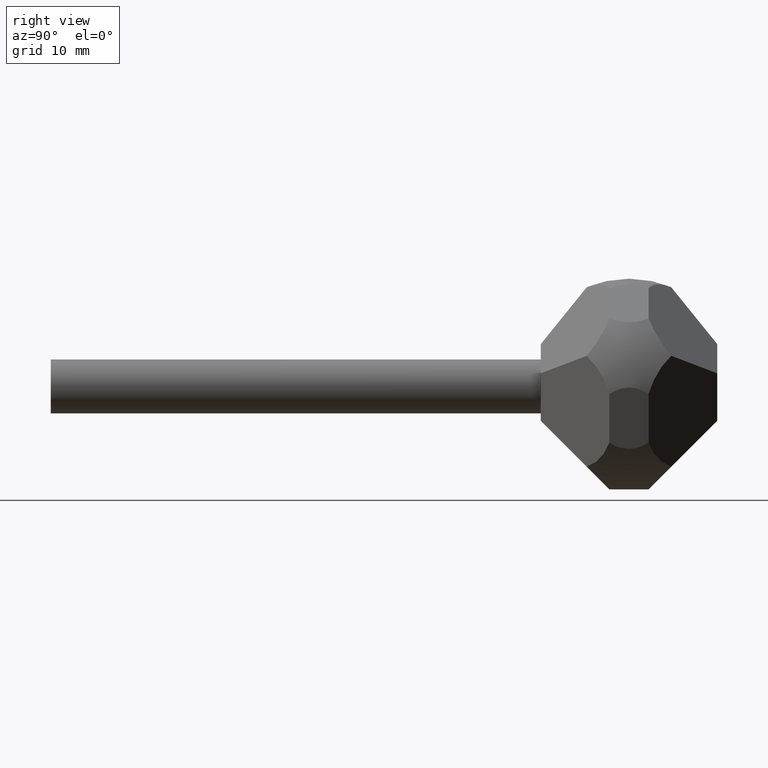
[diagram: clean part render]
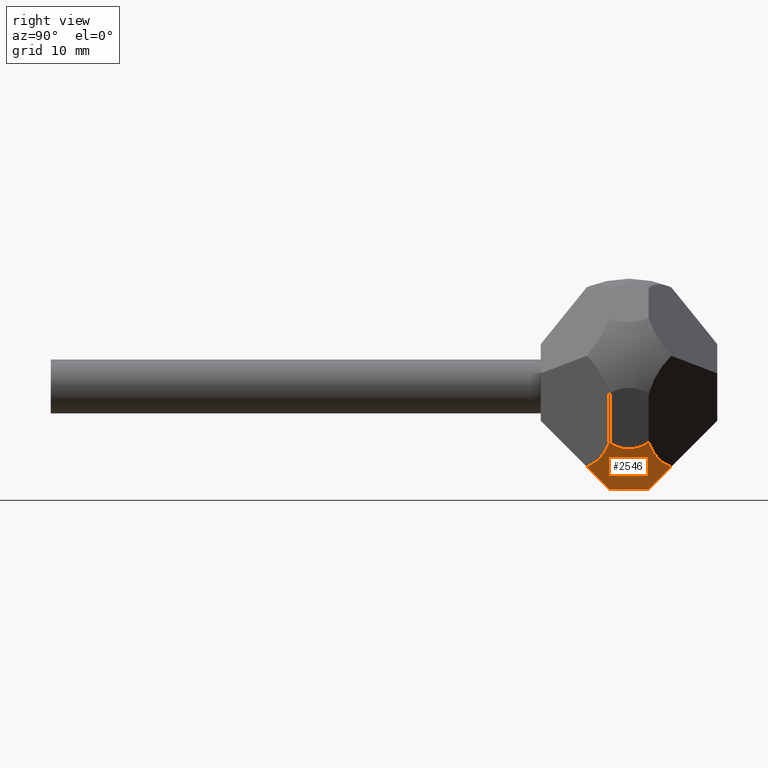
[diagram: same view with one face highlighted and labeled with its STEP entity id]
A machine part, right view. The second image highlights one B-rep face of the part: STEP entity #2546.
In plain terms, the highlighted spherical surface has radius 11 mm.
Its self-contained STEP definition (entity closure, byte-faithful):
#528 = CARTESIAN_POINT ( 'NONE',  ( -1.193821014675693519E-15, 0.000000000000000000, -10.49999999999999822 ) ) ;
#544 = CARTESIAN_POINT ( 'NONE',  ( 2.598076211353328002, -1.999999999999982681, -10.49999999999999822 ) ) ;
#701 = CARTESIAN_POINT ( 'NONE',  ( 9.183243719109656311, 1.999999999999982681, -5.715595751575953010 ) ) ;
#915 = DIRECTION ( 'NONE',  ( 1.000000000000000000, 0.000000000000000000, 0.000000000000000000 ) ) ;
#1071 = DIRECTION ( 'NONE',  ( 0.9510565162951537532, -0.000000000000000000, -0.3090169943749473402 ) ) ;
#1162 = ORIENTED_EDGE ( 'NONE', *, *, #8828, .F. ) ;
#1322 = FACE_OUTER_BOUND ( 'NONE', #1903, .T. ) ;
#1625 = CARTESIAN_POINT ( 'NONE',  ( 5.944103226844720034, -6.249999999999987566, -1.931356214843423791 ) ) ;
#1712 = CIRCLE ( 'NONE', #4933, 3.278719262151000624 ) ;
#1800 = AXIS2_PLACEMENT_3D ( 'NONE', #9344, #9423, #10371 ) ;
#1903 = EDGE_LOOP ( 'NONE', ( #10230, #7282, #5574, #1162, #6848, #5191 ) ) ;
#1951 = CARTESIAN_POINT ( 'NONE',  ( 0.000000000000000000, 0.000000000000000000, 0.000000000000000000 ) ) ;
#2081 = DIRECTION ( 'NONE',  ( 0.3090169943749471182, 1.776356839400250465E-15, 0.9510565162951536422 ) ) ;
#2102 = CARTESIAN_POINT ( 'NONE',  ( 5.947757503924629319, 4.313614104251378478, -8.186385895748610864 ) ) ;
#2546 = ADVANCED_FACE ( 'NONE', ( #1322 ), #5940, .T. ) ;
#2648 = DIRECTION ( 'NONE',  ( 1.776356839400250465E-15, -0.7071067811865487940, 0.7071067811865463515 ) ) ;
#3444 = DIRECTION ( 'NONE',  ( 0.6724985119639586006, -0.7071067811865462405, -0.2185080122244108525 ) ) ;
#4187 = CARTESIAN_POINT ( 'NONE',  ( 5.947757503924629319, -4.313614104251378478, -8.186385895748610864 ) ) ;
#4473 = EDGE_CURVE ( 'NONE', #8050, #5556, #6960, .T. ) ;
#4933 = AXIS2_PLACEMENT_3D ( 'NONE', #528, #7768, #5924 ) ;
#5191 = ORIENTED_EDGE ( 'NONE', *, *, #11781, .F. ) ;
#5230 = CIRCLE ( 'NONE', #5499, 6.547900426854399214 ) ;
#5423 = CIRCLE ( 'NONE', #7554, 3.278719262151007285 ) ;
#5499 = AXIS2_PLACEMENT_3D ( 'NONE', #10964, #8170, #2648 ) ;
#5556 = VERTEX_POINT ( 'NONE', #701 ) ;
#5574 = ORIENTED_EDGE ( 'NONE', *, *, #4473, .T. ) ;
#5713 = CARTESIAN_POINT ( 'NONE',  ( 9.986093421099109690, 0.000000000000000000, -3.244678440936945574 ) ) ;
#5769 = DIRECTION ( 'NONE',  ( 1.776356839400250465E-15, 0.7071067811865487940, 0.7071067811865463515 ) ) ;
#5924 = DIRECTION ( 'NONE',  ( 1.000000000000000000, 0.000000000000000000, 0.000000000000000000 ) ) ;
#5940 = SPHERICAL_SURFACE ( 'NONE', #10233, 11.00000000000000000 ) ;
#6045 = EDGE_CURVE ( 'NONE', #11245, #9382, #1712, .T. ) ;
#6848 = ORIENTED_EDGE ( 'NONE', *, *, #10484, .F. ) ;
#6960 = CIRCLE ( 'NONE', #1800, 6.547900426854396549 ) ;
#7282 = ORIENTED_EDGE ( 'NONE', *, *, #8020, .T. ) ;
#7554 = AXIS2_PLACEMENT_3D ( 'NONE', #5713, #1071, #2081 ) ;
#7739 = CARTESIAN_POINT ( 'NONE',  ( -7.106077468307710691E-16, 6.249999999999987566, -6.250000000000008882 ) ) ;
#7754 = CARTESIAN_POINT ( 'NONE',  ( 9.183243719109656311, -1.999999999999982681, -5.715595751575953010 ) ) ;
#7768 = DIRECTION ( 'NONE',  ( -1.136972394929232005E-16, 0.000000000000000000, -1.000000000000000000 ) ) ;
#8020 = EDGE_CURVE ( 'NONE', #11245, #8050, #8747, .T. ) ;
#8050 = VERTEX_POINT ( 'NONE', #2102 ) ;
#8170 = DIRECTION ( 'NONE',  ( -8.039608904763708299E-17, -0.7071067811865463515, -0.7071067811865487940 ) ) ;
#8569 = AXIS2_PLACEMENT_3D ( 'NONE', #7739, #11461, #5769 ) ;
#8665 = AXIS2_PLACEMENT_3D ( 'NONE', #1625, #3444, #10903 ) ;
#8747 = CIRCLE ( 'NONE', #8569, 6.547900426854399214 ) ;
#8828 = EDGE_CURVE ( 'NONE', #8927, #5556, #5423, .T. ) ;
#8927 = VERTEX_POINT ( 'NONE', #7754 ) ;
#9344 = CARTESIAN_POINT ( 'NONE',  ( 5.944103226844720034, 6.249999999999987566, -1.931356214843423791 ) ) ;
#9382 = VERTEX_POINT ( 'NONE', #544 ) ;
#9423 = DIRECTION ( 'NONE',  ( -0.6724985119639586006, -0.7071067811865462405, 0.2185080122244108525 ) ) ;
#9878 = CIRCLE ( 'NONE', #8665, 6.547900426854396549 ) ;
#9885 = CARTESIAN_POINT ( 'NONE',  ( 2.598076211353328002, 1.999999999999982681, -10.49999999999999822 ) ) ;
#10230 = ORIENTED_EDGE ( 'NONE', *, *, #6045, .F. ) ;
#10233 = AXIS2_PLACEMENT_3D ( 'NONE', #1951, #10257, #915 ) ;
#10257 = DIRECTION ( 'NONE',  ( 0.000000000000000000, 0.000000000000000000, 1.000000000000000000 ) ) ;
#10371 = DIRECTION ( 'NONE',  ( -0.7246170400674455392, 0.6891517577746528733, 0.000000000000000000 ) ) ;
#10451 = VERTEX_POINT ( 'NONE', #4187 ) ;
#10484 = EDGE_CURVE ( 'NONE', #10451, #8927, #9878, .T. ) ;
#10903 = DIRECTION ( 'NONE',  ( -0.7246170400674455392, -0.6891517577746528733, 0.000000000000000000 ) ) ;
#10964 = CARTESIAN_POINT ( 'NONE',  ( -7.106077468307710691E-16, -6.249999999999987566, -6.250000000000008882 ) ) ;
#11245 = VERTEX_POINT ( 'NONE', #9885 ) ;
#11461 = DIRECTION ( 'NONE',  ( 8.039608904763708299E-17, -0.7071067811865463515, 0.7071067811865487940 ) ) ;
#11781 = EDGE_CURVE ( 'NONE', #9382, #10451, #5230, .T. ) ;